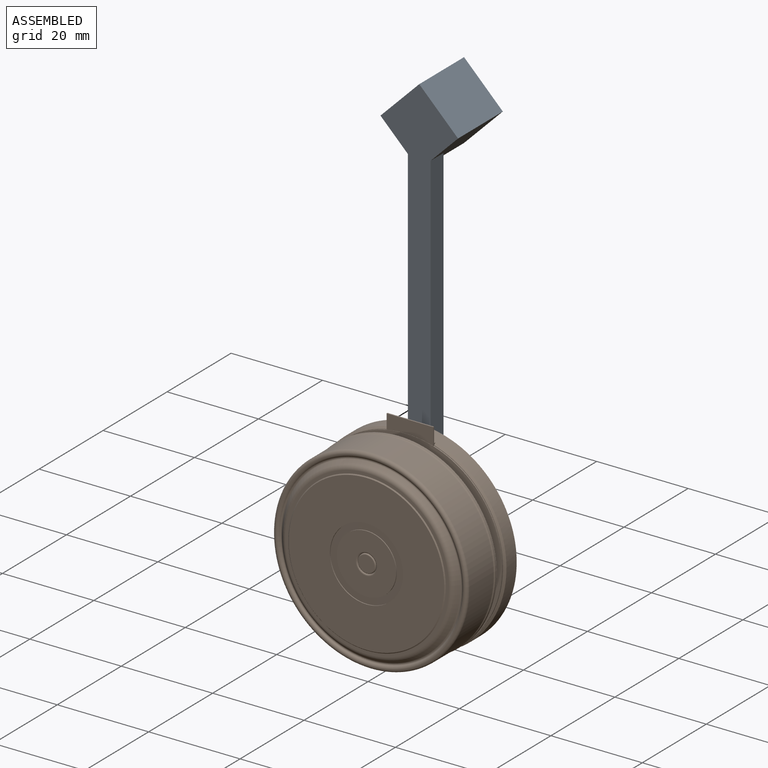
[diagram: assembled view]
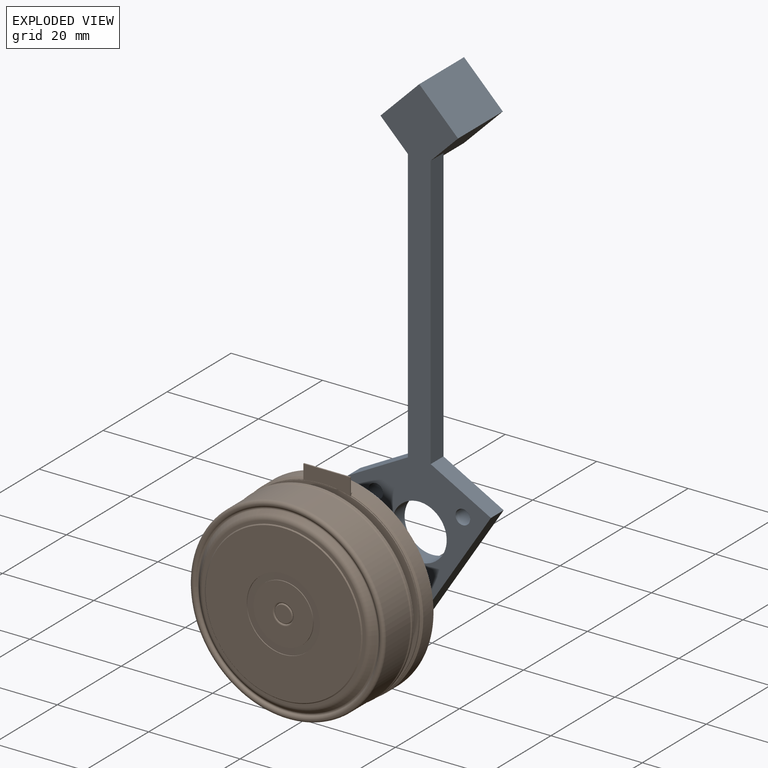
[diagram: exploded view]
GUIDED TOUR — FREECAD ASSEMBLY "motor"

This assembly has 2 components, labeled P0..P1 below (a component is one placed body or linked part; the same part can appear more than once), held together by 1 modeled joint. A joint is a constraint between two components; its type names the relative motion it leaves free:
  FASTENED — locks the two components together rigidly (no relative motion).
Axis/direction vectors are unit vectors and 'through' points are millimeter coordinates, both in the assembly's world frame.

MATES
  1. FASTENED [Fixed] "Joint": P0 <-> P1, direction (0.000, -1.000, 0.000) through (-9.53, -4.00, 5.50) mm

ASSEMBLY ORDER
  1. P0 — the base component [order heuristic]
  2. P1 [order heuristic]
Order-tag legend:
  [order heuristic] — this assembly is geometrically interlocked (no collision-free removal order exists), so components are listed in mate-graph order; insertion feasibility is not verified.

Of the 2 components, 1 carries a construction recipe — the FreeCAD feature program (sketches with constraints, then the solid features that consume them) that regenerates the part from scratch, quoted from this document or from the linked companion document it references; the rest are supplied as boundary geometry only. The tour below walks the components in assembly order: each is shown spotlighted twice — in the assembled view, then in the exploded view, where a leader line traces a displaced component back to its assembled socket (components that stay in place when exploded have no leader line; saturated green if recipe-attached, orange if geometry-only; every other component desaturated gray) — followed by its recipe or geometry summary and the mates that hold it.
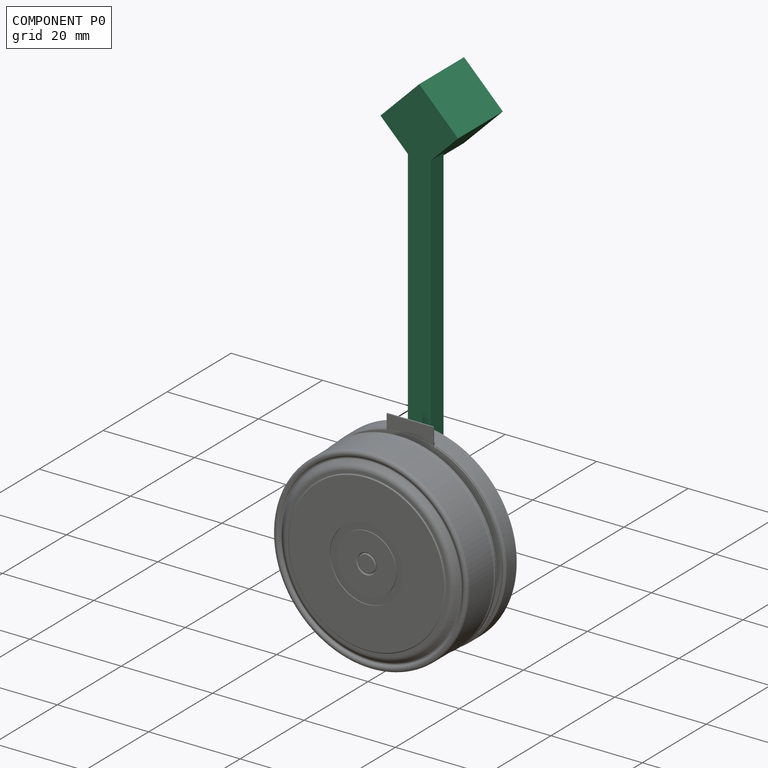
[diagram: component P0 — assembled]
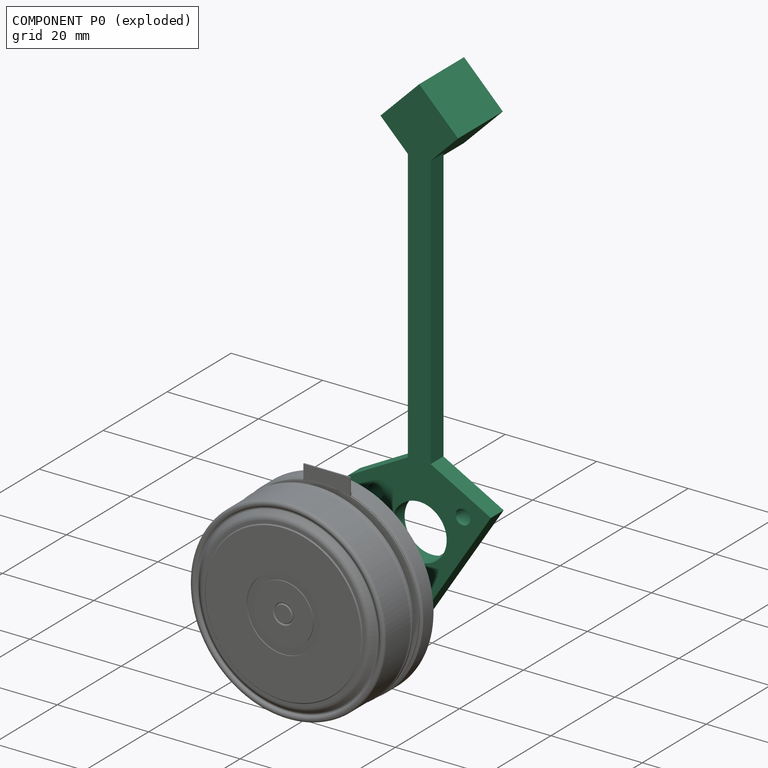
[diagram: component P0 — exploded]
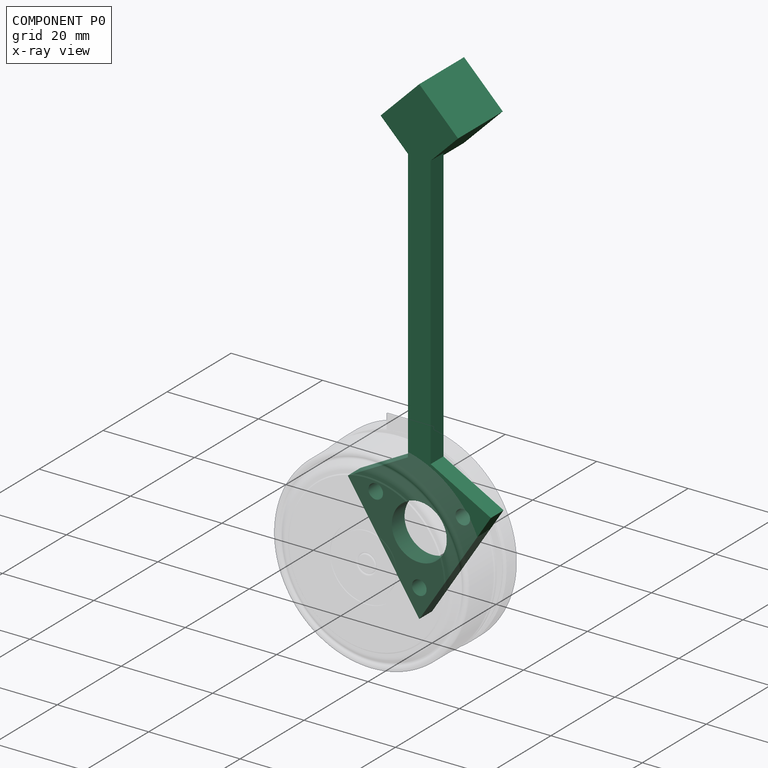
[diagram: component P0 — x-ray view]
COMPONENT P0 — recipe-attached ("Body001", modeled in this document).
Held by: FASTENED mate "Joint" to P1.
Construction recipe (the document's own serialized feature program — sketch geometry with constraints, then the solid features built on it; lengths are millimeters unless a unit is written):

FEATURE [Sketcher::SketchObject] Sketch
  ArcFitTolerance = 1e-06
  AttachmentSupport = -> [XZ_Plane]
  FullyConstrained = false
  MakeInternals = false
  MapMode = 5
  Placement = pos=(0,0,0) rot=(1,0,0;1.5708rad)
  sketch-geometry (18):
    g0: LineSegment StartX=-2.5 StartY=14.1095 StartZ=0 EndX=-2.5 EndY=74.1095 EndZ=0
    g1: LineSegment StartX=2.5 StartY=14.1095 StartZ=0 EndX=2.5 EndY=74.1095 EndZ=0
    g2: LineSegment StartX=2.5 StartY=74.1095 StartZ=0 EndX=8.48528 EndY=80.0948 EndZ=0
    g3: LineSegment StartX=8.48528 StartY=80.0948 StartZ=0 EndX=0 EndY=88.5801 EndZ=0
    g4: LineSegment StartX=0 StartY=88.5801 StartZ=0 EndX=-8.48528 EndY=80.0948 EndZ=0
    g5: Circle CenterX=-9.52628 CenterY=5.5 CenterZ=0 NormalX=0 NormalY=0 NormalZ=1 AngleXU=0 Radius=1.6
    g6: Circle CenterX=9.52628 CenterY=5.5 CenterZ=0 NormalX=0 NormalY=0 NormalZ=1 AngleXU=0 Radius=1.6
    g7: Circle CenterX=0 CenterY=-11 CenterZ=0 NormalX=0 NormalY=0 NormalZ=1 AngleXU=0 Radius=1.6
    g8: LineSegment [constr] StartX=9.52628 StartY=5.5 StartZ=0 EndX=-9.52628 EndY=5.5 EndZ=0
    g9: LineSegment [constr] StartX=-9.52628 StartY=5.5 StartZ=0 EndX=0 EndY=-11 EndZ=0
    g10: LineSegment [constr] StartX=0 StartY=-11 StartZ=0 EndX=9.52628 EndY=5.5 EndZ=0
    g11: LineSegment StartX=-2.5 StartY=14.1095 StartZ=0 EndX=-15.6702 EndY=6.97829 EndZ=0
    g12: LineSegment StartX=-15.6702 StartY=6.97829 StartZ=0 EndX=0 EndY=-17.2325 EndZ=0
    g13: LineSegment StartX=0 StartY=-17.2325 StartZ=0 EndX=15.6702 EndY=6.97829 EndZ=0
    g14: LineSegment StartX=15.6702 StartY=6.97829 StartZ=0 EndX=2.5 EndY=14.1095 EndZ=0
    g15: Circle CenterX=0 CenterY=0 CenterZ=0 NormalX=0 NormalY=0 NormalZ=1 AngleXU=0 Radius=6
    g16: Circle [constr] CenterX=0 CenterY=0 CenterZ=0 NormalX=0 NormalY=0 NormalZ=1 AngleXU=0 Radius=11
    g17: LineSegment StartX=-8.48528 StartY=80.0948 StartZ=0 EndX=-2.5 EndY=74.1095 EndZ=0
  constraints (43):
    c: Vertical(g0)
    c: Vertical(g1)
    c: Coincident(g2,g3)
    c: Coincident(g3,g4)
    c: Distance(g4,g3) = 12
    c: Distance(g0,g1) = 5
    c: Diameter(g5) = 3.2
    c: Equal(g5,g6)
    c: Equal(g5,g7)
    c: Coincident(g8,g9)
    c: Coincident(g9,g10)
    c: Coincident(g10,g8)
    c: Equal(g8,g9)
    c: Equal(g8,g10)
    c: Coincident(g10,g6)
    c: Coincident(g5,g8)
    c: Coincident(g7,g9)
    c: Coincident(g0,g11)
    c: Coincident(g11,g12)
    c: PointOnObject(g12,g-2)
    c: Coincident(g12,g13)
    c: Coincident(g13,g14)
    c: Coincident(g14,g1)
    c: Symmetric(g5,g6,g-2)
    c: Diameter(g15) = 12
    c: PointOnObject(g6,g16)
    c: PointOnObject(g7,g16)
    c: Diameter(g16) = 22
    c: Coincident(g17,g4)
    c: Coincident(g17,g0)
    c: Coincident(g2,g1)
    c: Distance(g3,g3) = 12
    c: PointOnObject(g3,g-2)
    c: Angle(g4,g3) = 1.5708
    c: Horizontal(g4,g2)
    c: Angle(g17,g4) = 1.5708
    c: Symmetric(g0,g1,g-2)
    c: Horizontal(g0,g1)
    c: Coincident(g15,g16)
    c: Coincident(g15,g-1)
    c: Horizontal(g11,g13)
    c: Equal(g11,g14)
    c: DistanceY(g1,g1) = 60
FEATURE [PartDesign::Pad] Pad
  Direction = (0,-1,2e-16)
  Length = 4
  Length2 = 10
  Placement = pos=(0,0,0) rot=(1,0,0;1.5708rad)
  Profile = -> Sketch
  ReferenceAxis = -> Sketch [N_Axis]
  Refine = true
  Suppressed = false
  Type = 0
FEATURE [Sketcher::SketchObject] Sketch001
  ArcFitTolerance = 1e-06
  AttachmentSupport = -> [Pad]
  ExternalGeometry = -> [Pad]
  FullyConstrained = true
  MakeInternals = false
  MapMode = 5
  Placement = pos=(0,6.3e-15,0) rot=(-1,0,0;1.5708rad)
  sketch-geometry (4):
    g0: LineSegment StartX=-8.48528 StartY=-80.0948 StartZ=0 EndX=0 EndY=-88.5801 EndZ=0
    g1: LineSegment StartX=0 StartY=-88.5801 StartZ=0 EndX=8.48528 EndY=-80.0948 EndZ=0
    g2: LineSegment StartX=8.48528 StartY=-80.0948 StartZ=0 EndX=0 EndY=-71.6095 EndZ=0
    g3: LineSegment StartX=0 StartY=-71.6095 StartZ=0 EndX=-8.48528 EndY=-80.0948 EndZ=0
  constraints (9):
    c: Coincident(g0,g1)
    c: Coincident(g1,g2)
    c: Coincident(g2,g3)
    c: Coincident(g3,g0)
    c: Distance(g0,g2) = 12
    c: Coincident(g0,g-6)
    c: Coincident(g0,g-4)
    c: Coincident(g1,g-5)
    c: PointOnObject(g2,g-2)
FEATURE [PartDesign::Pad] Pad001
  BaseFeature = -> Pad
  Direction = (0,1,2e-16)
  Length = 10
  Length2 = 10
  Placement = pos=(0,0,0) rot=(1,0,0;1.5708rad)
  Profile = -> Sketch001
  ReferenceAxis = -> Sketch001 [N_Axis]
  Refine = true
  Suppressed = false
  Type = 0
FEATURE [PartDesign::Body] Body
  AllowCompound = false
  Group = -> [Sketch,Pad,Sketch001,Pad001]
  Origin = -> Origin
  Placement = pos=(-37,-7,2) rot=(0,0,1;3.14159rad)
  Tip = -> Pad001
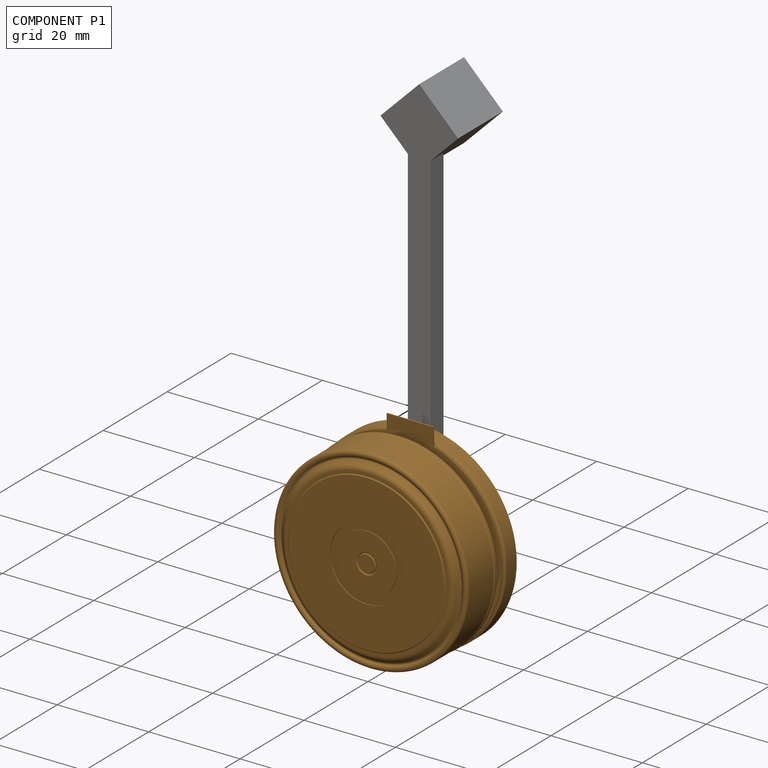
[diagram: component P1 — assembled]
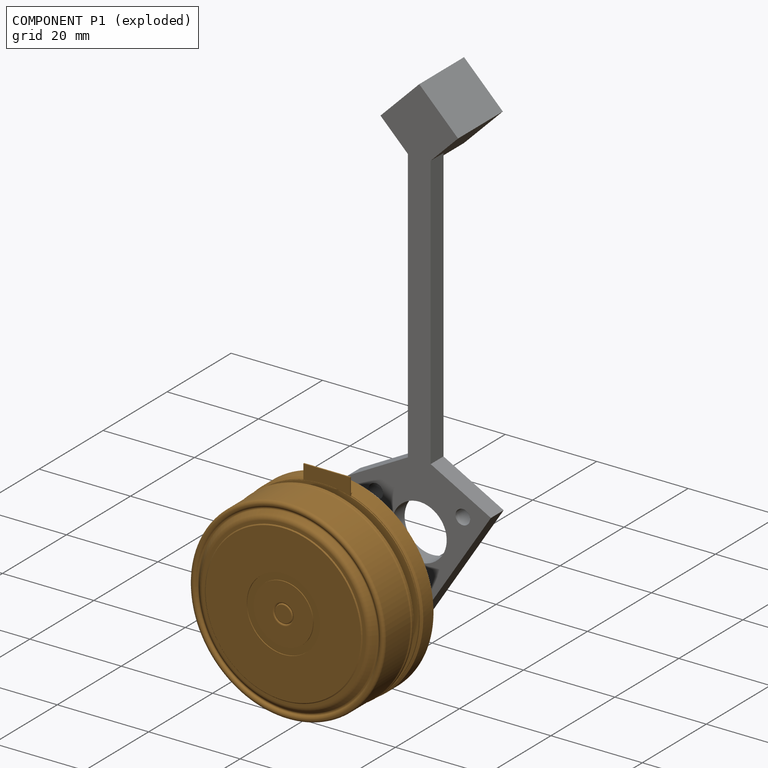
[diagram: component P1 — exploded]
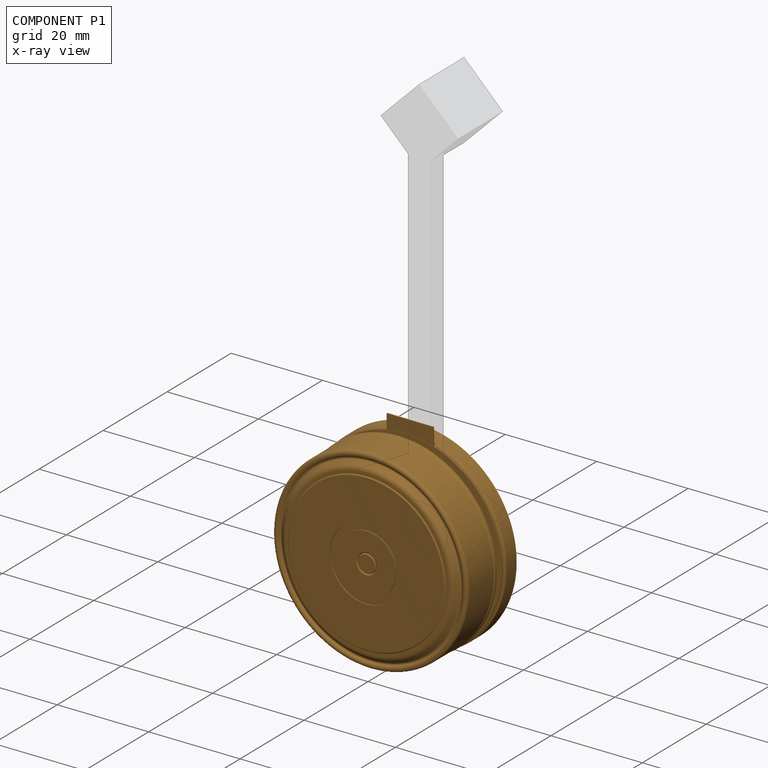
[diagram: component P1 — x-ray view]
COMPONENT P1 — geometry summary ("Cut001"; no construction recipe available for this part):
  bounding box: 45.6 x 43.2 x 37.0 mm
  tessellated surface: 41,744 triangles
  volume: 22887 mm^3 (31% of its bounding box)
Held by: FASTENED mate "Joint" to P0.
PROVENANCE & LICENSES
Assembly and component geometry: a FreeCAD (.FCStd) document from a public repository crawl; components, placements and joints were extracted with FreeCAD and each solid tessellated.
Construction recipes: the document's own serialized feature recipes (and, for linked parts, the recipes of companion documents from the same project).
License: mit.
Joints: native FreeCAD joints and A2plus constraints are mapped to standard mate types.
Verification: 1 of this assembly's 2 components carries a construction recipe (1 from this document itself); the rest are geometry-only. Every component's tessellation passed the extraction mesh gates (mesh-volume checksum against the B-rep where available, bounding-box inflation <= 2%).
Renders: orthographic iso camera (az 35 / el 25); the floor grid conveys scale (grid pitch printed in each image; no ruler). In the exploded view each component is displaced by its stored offset vector: the offsets alone carry the explosion direction (mate normal/axis signs are not orientation cues and do not encode it), and separation distances are assigned per mate-chain, not proportionally to assembly-order depth.
